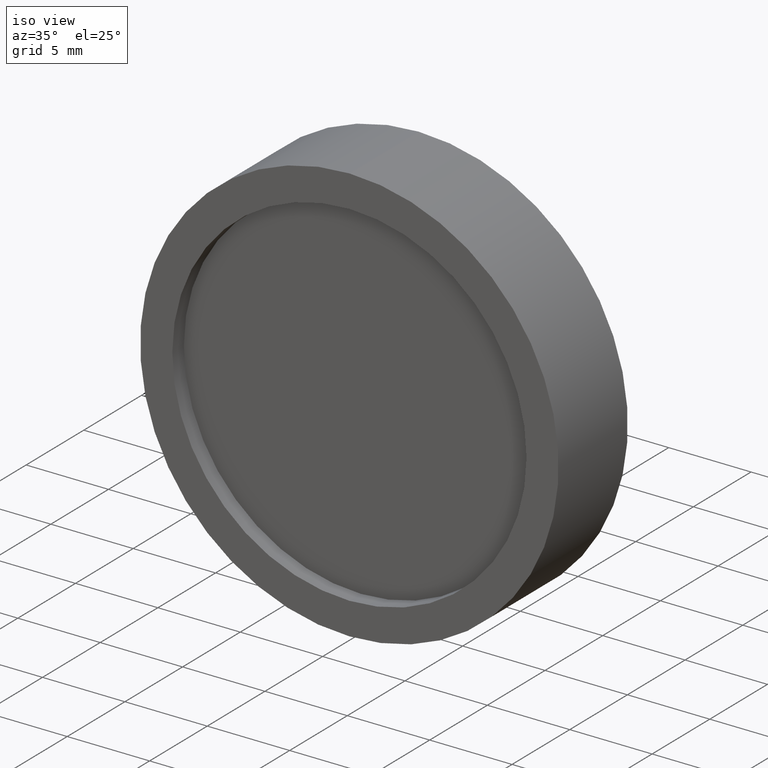
[diagram: clean part render]
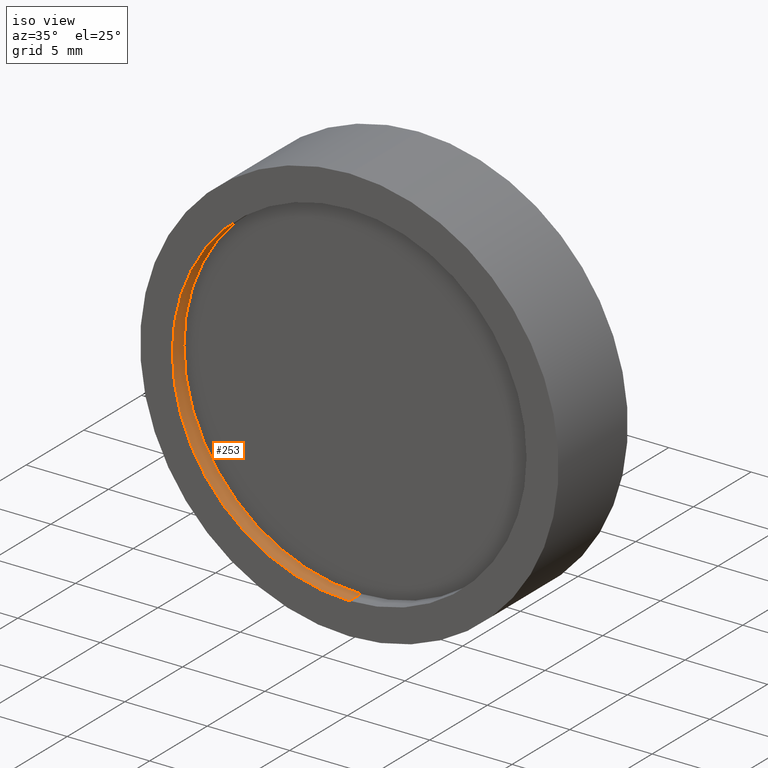
[diagram: same view with one face highlighted and labeled with its STEP entity id]
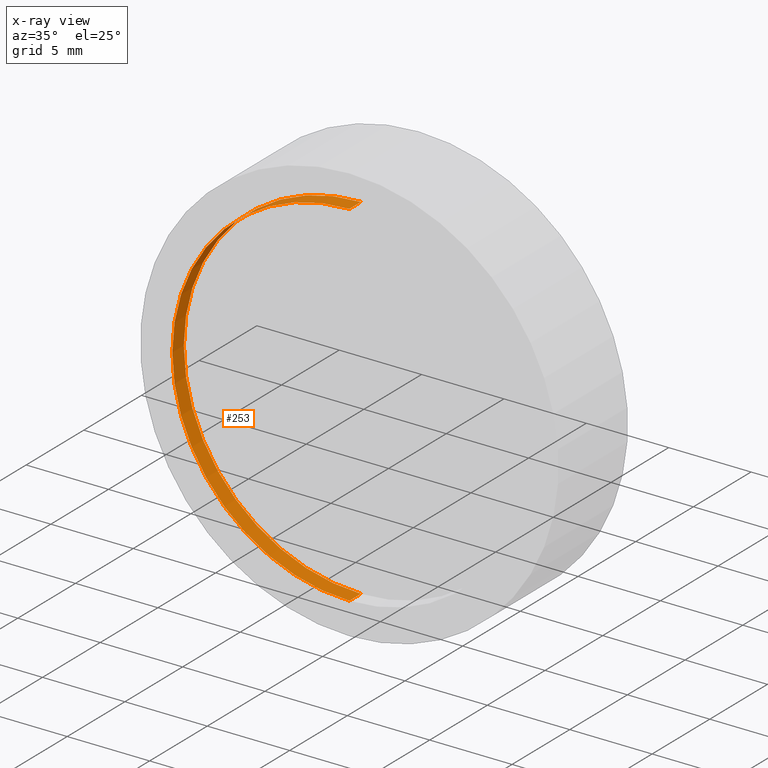
[diagram: x-ray of the same camera — body ghosted, the highlighted face saturated]
A machine part, iso view. The second image highlights one B-rep face of the part: STEP entity #253.
The next image is the same camera in x-ray: the body ghosted, the highlighted face saturated — about 0% of this face is hidden behind the body in this view.
In plain terms, the highlighted cylindrical surface (partial cylindrical patch) has radius 10.75 mm, axis along (-0, -1, -0).
Its self-contained STEP definition (entity closure, byte-faithful):
#9 = EDGE_CURVE ( 'NONE', #635, #725, #780, .T. ) ;
#46 = CIRCLE ( 'NONE', #346, 10.75000000000000000 ) ;
#69 = CARTESIAN_POINT ( 'NONE',  ( -34.59164044491552659, -8.259296399802728672, -10.75000000000000000 ) ) ;
#84 = LINE ( 'NONE', #815, #792 ) ;
#93 = DIRECTION ( 'NONE',  ( -0.0000000000000000000, -1.000000000000000000, -0.0000000000000000000 ) ) ;
#195 = ORIENTED_EDGE ( 'NONE', *, *, #462, .F. ) ;
#208 = LINE ( 'NONE', #543, #252 ) ;
#211 = AXIS2_PLACEMENT_3D ( 'NONE', #829, #701, #750 ) ;
#215 = VERTEX_POINT ( 'NONE', #413 ) ;
#252 = VECTOR ( 'NONE', #670, 1000.000000000000000 ) ;
#253 = ADVANCED_FACE ( 'NONE', ( #698 ), #694, .F. ) ;
#289 = ORIENTED_EDGE ( 'NONE', *, *, #9, .F. ) ;
#346 = AXIS2_PLACEMENT_3D ( 'NONE', #546, #474, #350 ) ;
#350 = DIRECTION ( 'NONE',  ( 0.0000000000000000000, 0.0000000000000000000, -1.000000000000000000 ) ) ;
#413 = CARTESIAN_POINT ( 'NONE',  ( -34.59164044491552659, -8.259296399802728672, 10.75000000000000000 ) ) ;
#423 = DIRECTION ( 'NONE',  ( 0.0000000000000000000, 0.0000000000000000000, -1.000000000000000000 ) ) ;
#462 = EDGE_CURVE ( 'NONE', #725, #682, #208, .T. ) ;
#474 = DIRECTION ( 'NONE',  ( -0.0000000000000000000, -1.000000000000000000, -0.0000000000000000000 ) ) ;
#486 = CARTESIAN_POINT ( 'NONE',  ( -34.59164044491552659, -7.259296399802728672, 0.0000000000000000000 ) ) ;
#487 = EDGE_CURVE ( 'NONE', #215, #682, #46, .T. ) ;
#543 = CARTESIAN_POINT ( 'NONE',  ( -34.59164044491552659, -8.259296399802728672, -10.75000000000000000 ) ) ;
#546 = CARTESIAN_POINT ( 'NONE',  ( -34.59164044491552659, -8.259296399802728672, 0.0000000000000000000 ) ) ;
#635 = VERTEX_POINT ( 'NONE', #731 ) ;
#670 = DIRECTION ( 'NONE',  ( -0.0000000000000000000, -1.000000000000000000, -0.0000000000000000000 ) ) ;
#682 = VERTEX_POINT ( 'NONE', #69 ) ;
#694 = CYLINDRICAL_SURFACE ( 'NONE', #211, 10.75000000000000000 ) ;
#695 = AXIS2_PLACEMENT_3D ( 'NONE', #486, #93, #423 ) ;
#697 = EDGE_LOOP ( 'NONE', ( #289, #705, #765, #195 ) ) ;
#698 = FACE_OUTER_BOUND ( 'NONE', #697, .T. ) ;
#701 = DIRECTION ( 'NONE',  ( -0.0000000000000000000, -1.000000000000000000, -0.0000000000000000000 ) ) ;
#705 = ORIENTED_EDGE ( 'NONE', *, *, #854, .T. ) ;
#725 = VERTEX_POINT ( 'NONE', #735 ) ;
#731 = CARTESIAN_POINT ( 'NONE',  ( -34.59164044491552659, -7.259296399802728672, 10.75000000000000000 ) ) ;
#735 = CARTESIAN_POINT ( 'NONE',  ( -34.59164044491552659, -7.259296399802728672, -10.75000000000000000 ) ) ;
#750 = DIRECTION ( 'NONE',  ( 0.0000000000000000000, 0.0000000000000000000, -1.000000000000000000 ) ) ;
#765 = ORIENTED_EDGE ( 'NONE', *, *, #487, .T. ) ;
#780 = CIRCLE ( 'NONE', #695, 10.75000000000000000 ) ;
#792 = VECTOR ( 'NONE', #819, 1000.000000000000000 ) ;
#815 = CARTESIAN_POINT ( 'NONE',  ( -34.59164044491552659, -8.259296399802728672, 10.75000000000000000 ) ) ;
#819 = DIRECTION ( 'NONE',  ( -0.0000000000000000000, -1.000000000000000000, -0.0000000000000000000 ) ) ;
#829 = CARTESIAN_POINT ( 'NONE',  ( -34.59164044491552659, -8.259296399802728672, 0.0000000000000000000 ) ) ;
#854 = EDGE_CURVE ( 'NONE', #635, #215, #84, .T. ) ;